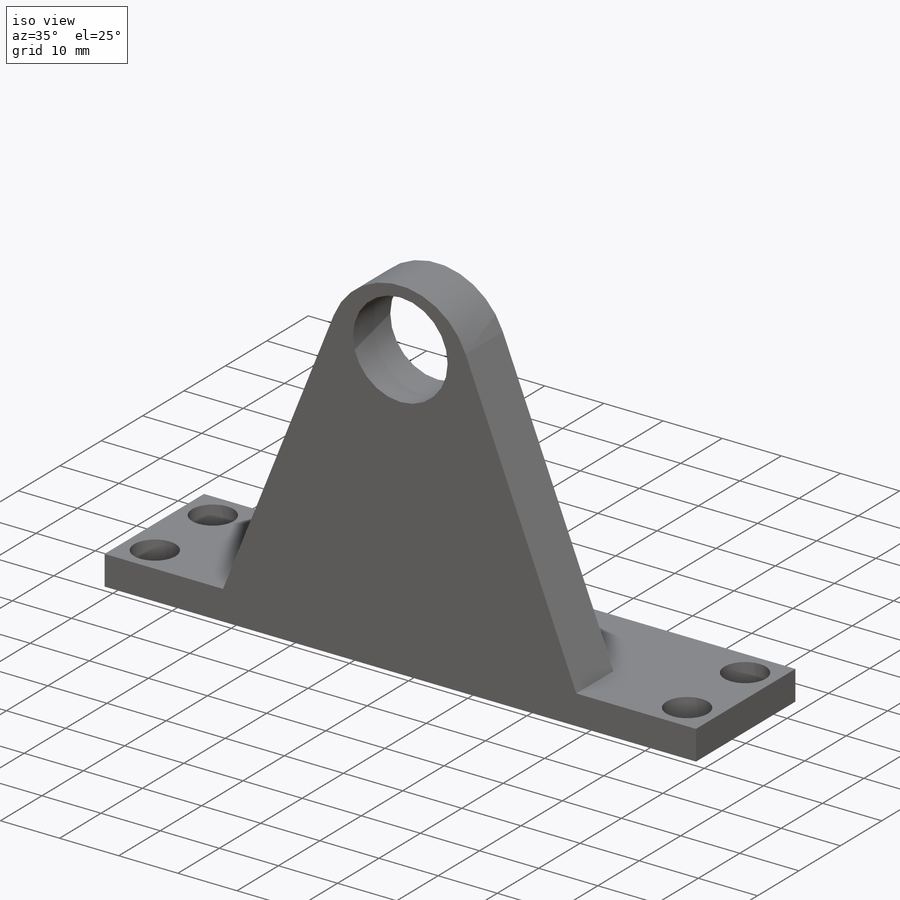
[diagram: iso view]
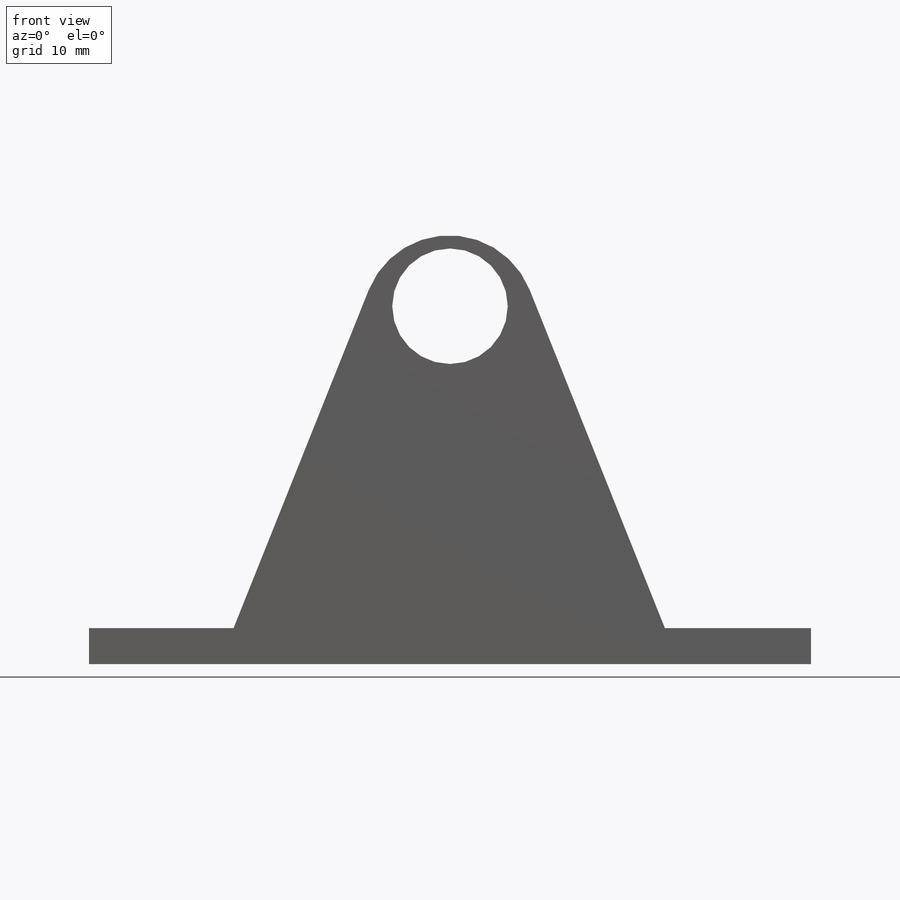
[diagram: front view]
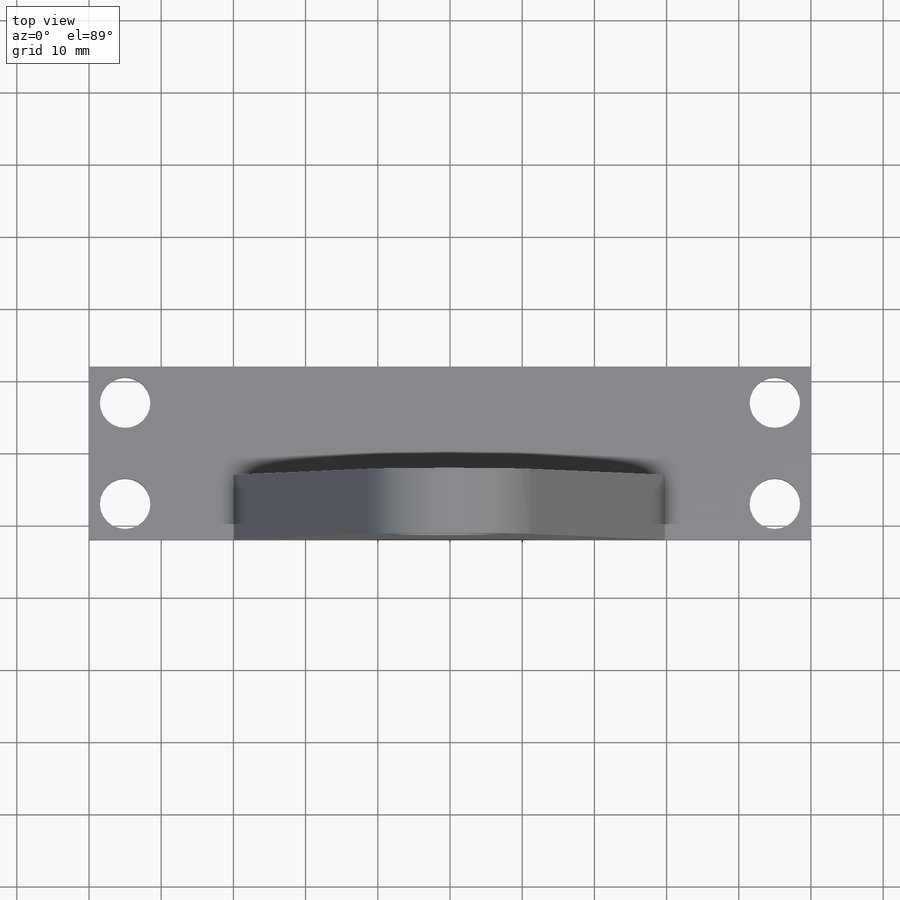
[diagram: top view]
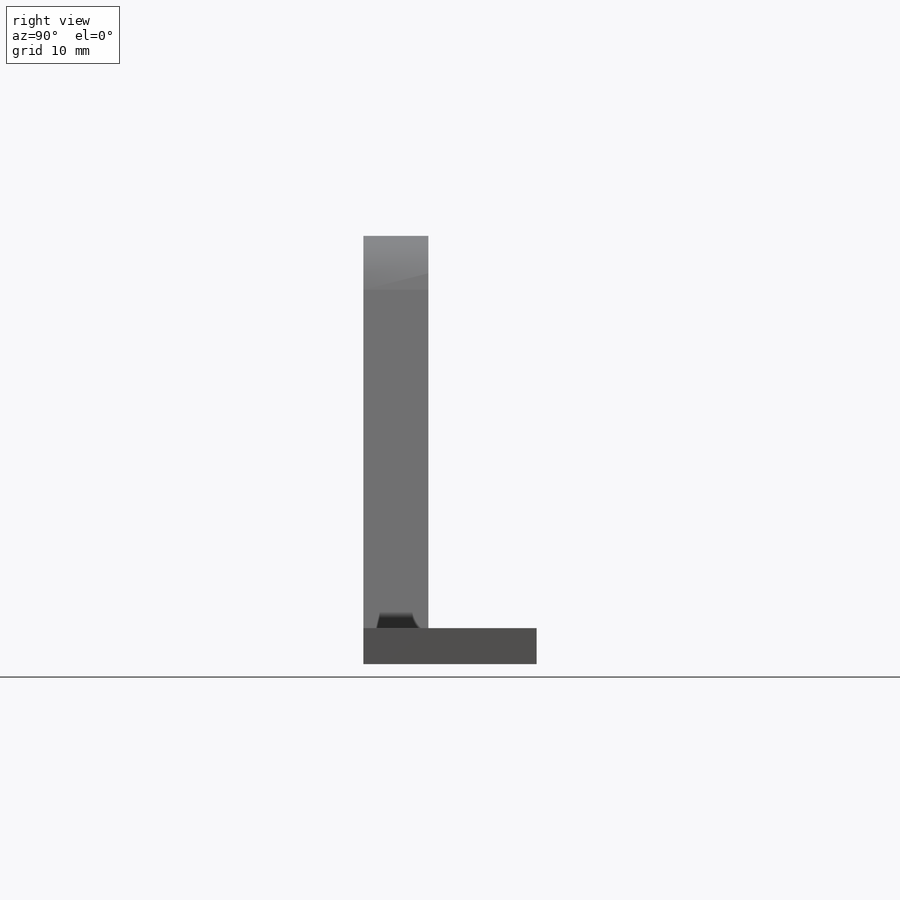
[diagram: right view]
SOLIDWORKS PART (.sldprt)
format: sldprt  version: not decoded by parser v0  size: 171,520 bytes
history: native  units: mm
features: sketch x3, extrude x2, material x1, plane x1, cut_extrude x1 (+12 scaffold rows collapsed)
feature tree (20):
  scaffold x12  (default folders/planes/origin — collapsed)
  material  "Material <not specified>"
  sketch  "Sketch1"  dims[c1.D4=~4.432158mm c1.D1=100.0mm c1.D2=24.0mm c1.D3=45.0mm c2.D4=90.0mm]
  extrude  "Boss-Extrude1"  Depth=5mm
  plane  "Plane1"  Offset=3mm
  sketch  "Sketch2"  dims[c1.D3=12.0mm c1.D1=20.0mm c1.D2=~17.297452mm c2.D1=20.0mm c2.D2=20.0mm c2.D3=~59.741538mm c3.D3=70.0deg]
  extrude  "Boss-Extrude2"  Depth=9mm
  sketch  "Sketch3"  dims[D1=16.0mm]
  cut_extrude  "Cut-Extrude1"  [1 undecoded]
decode coverage: 5 of 6 modeling features carry decoded parameters
note: ~ marks probable driven/reference dimensions
note: 1 parameter value undecoded
note: suppression state not decoded; provenance and decode notes live in map.json
